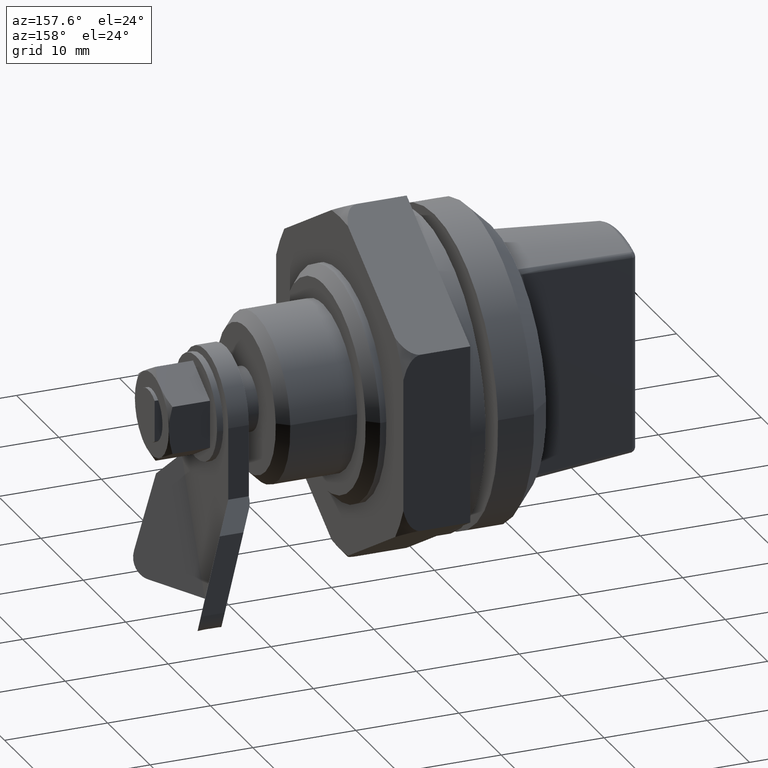
[diagram: clean part render]
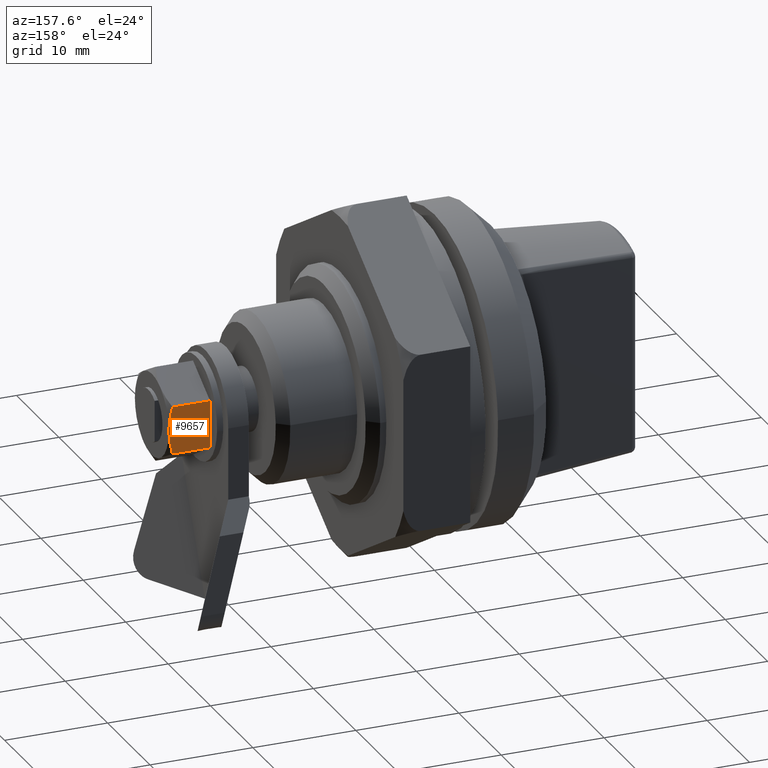
[diagram: same view with one face highlighted and labeled with its STEP entity id]
A machine part, auxiliary view. The second image highlights one B-rep face of the part: STEP entity #9657.
In plain terms, the highlighted face is a freeform B-spline surface patch.
Its self-contained STEP definition (entity closure, byte-faithful):
#8865=CARTESIAN_POINT('',(27.456000000000000,4.0,0.0));
#8866=VERTEX_POINT('',#8865);
#9282=CARTESIAN_POINT('',(27.098652457496900,4.0,2.309000000000120));
#9283=VERTEX_POINT('',#9282);
#9284=CARTESIAN_POINT('',(27.098652457496900,4.0,2.309000000000120));
#9285=CARTESIAN_POINT('',(27.206468562314448,4.0,1.935672082298349));
#9286=CARTESIAN_POINT('',(27.296249963490840,4.0,1.557468394291037));
#9287=CARTESIAN_POINT('',(27.374524964915619,4.000000000000001,1.075534762658470));
#9288=CARTESIAN_POINT('',(27.388475627819140,4.000000000000001,0.978687260387960));
#9289=CARTESIAN_POINT('',(27.412676160288271,3.999999999999999,0.783991728273929));
#9290=CARTESIAN_POINT('',(27.422934987981151,4.0,0.686027631891516));
#9291=CARTESIAN_POINT('',(27.447688995989630,4.0,0.391279424724892));
#9292=CARTESIAN_POINT('',(27.455994693334890,4.000000000000001,0.195413396848195));
#9293=CARTESIAN_POINT('',(27.455999999148119,4.0,0.000125419597250));
#9294=CARTESIAN_POINT('',(27.455999999985270,4.0,0.000062709847563));
#9295=CARTESIAN_POINT('',(27.455999999955800,4.0,1.647743E-010));
#9296=B_SPLINE_CURVE_WITH_KNOTS('',3,(#9284,#9285,#9286,#9287,#9288,#9289,#9290,#9291,#9292,#9293,#9294,#9295),.UNSPECIFIED.,.F.,.U.,(4,2,2,2,2,4),(0.499959847784170,0.749959847784170,0.812459847784170,0.874959847784170,0.999959847784170,1.0),.UNSPECIFIED.);
#9297=EDGE_CURVE('',#9283,#8866,#9296,.T.);
#9412=CARTESIAN_POINT('',(27.098363613267750,4.0,-2.309999999999880));
#9413=VERTEX_POINT('',#9412);
#9431=CARTESIAN_POINT('',(27.456000000000000,4.0,0.0));
#9432=CARTESIAN_POINT('',(27.455999816525161,3.999999999999999,-0.390386992047125));
#9433=CARTESIAN_POINT('',(27.422414698941701,4.0,-0.778181348228895));
#9434=CARTESIAN_POINT('',(27.329073407699909,4.0,-1.356587601147794));
#9435=CARTESIAN_POINT('',(27.290903728137799,4.0,-1.548866866792007));
#9436=CARTESIAN_POINT('',(27.202477277313779,4.0,-1.932488439912427));
#9437=CARTESIAN_POINT('',(27.152643360265898,4.000000000000002,-2.122110023160137));
#9438=CARTESIAN_POINT('',(27.098363613267761,4.0,-2.309999999999881));
#9439=B_SPLINE_CURVE_WITH_KNOTS('',3,(#9431,#9432,#9433,#9434,#9435,#9436,#9437,#9438),.UNSPECIFIED.,.F.,.U.,(4,2,2,4),(0.0,0.249959847750651,0.374959847750651,0.499959847750651),.UNSPECIFIED.);
#9440=EDGE_CURVE('',#8866,#9413,#9439,.T.);
#9620=CARTESIAN_POINT('',(23.456000000000000,4.0,2.309000000000120));
#9621=VERTEX_POINT('',#9620);
#9622=CARTESIAN_POINT('',(27.098652457496900,4.0,2.309000000000120));
#9623=CARTESIAN_POINT('',(23.456000000000000,4.0,2.309000000000120));
#9624=QUASI_UNIFORM_CURVE('',1,(#9622,#9623),.UNSPECIFIED.,.F.,.U.);
#9625=EDGE_CURVE('',#9283,#9621,#9624,.T.);
#9635=CARTESIAN_POINT('',(23.256200007752771,4.0,2.539719041047602));
#9636=CARTESIAN_POINT('',(23.256200007752771,4.0,-2.540719164938596));
#9637=CARTESIAN_POINT('',(27.655800099535579,4.0,2.539719041047602));
#9638=CARTESIAN_POINT('',(27.655800099535579,4.0,-2.540719164938596));
#9639=B_SPLINE_SURFACE_WITH_KNOTS('',1,1,((#9635,#9637),(#9636,#9638)),.UNSPECIFIED.,.F.,.F.,.U.,(2,2),(2,2),(0.0,5.080438205986198),(0.0,4.399600091782808),.UNSPECIFIED.);
#9640=ORIENTED_EDGE('',*,*,#9625,.F.);
#9641=ORIENTED_EDGE('',*,*,#9297,.T.);
#9642=ORIENTED_EDGE('',*,*,#9440,.T.);
#9643=CARTESIAN_POINT('',(23.456000000000000,4.0,-2.309999999999880));
#9644=VERTEX_POINT('',#9643);
#9645=CARTESIAN_POINT('',(27.098363613267750,4.0,-2.309999999999880));
#9646=CARTESIAN_POINT('',(23.456000000000000,4.0,-2.309999999999880));
#9647=QUASI_UNIFORM_CURVE('',1,(#9645,#9646),.UNSPECIFIED.,.F.,.U.);
#9648=EDGE_CURVE('',#9413,#9644,#9647,.T.);
#9649=ORIENTED_EDGE('',*,*,#9648,.T.);
#9650=CARTESIAN_POINT('',(23.456000000000000,4.0,-2.309999999999880));
#9651=CARTESIAN_POINT('',(23.456000000000000,4.0,2.309000000000120));
#9652=QUASI_UNIFORM_CURVE('',1,(#9650,#9651),.UNSPECIFIED.,.F.,.U.);
#9653=EDGE_CURVE('',#9644,#9621,#9652,.T.);
#9654=ORIENTED_EDGE('',*,*,#9653,.T.);
#9655=EDGE_LOOP('',(#9640,#9641,#9642,#9649,#9654));
#9656=FACE_OUTER_BOUND('',#9655,.T.);
#9657=ADVANCED_FACE('',(#9656),#9639,.F.);